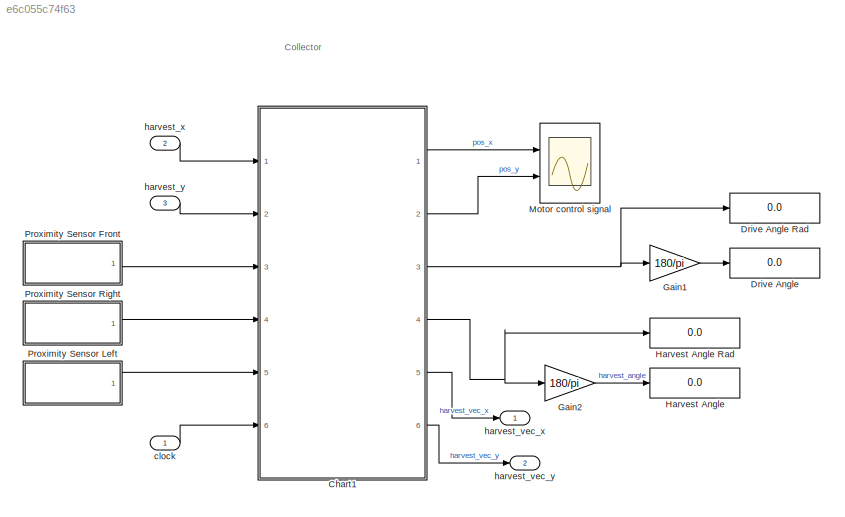
MODEL slx_e6c055c74f63
KIND model
CONFIG AbsTol = auto
CONFIG EnableMultiTasking = off
CONFIG FixedStep = 0.01
CONFIG MaxStep = auto
CONFIG MinStep = auto
CONFIG RelTol = 1e-3
CONFIG SampleTimeConstraint = Unconstrained
CONFIG Solver = FixedStepAuto
CONFIG SolverName = FixedStepAuto
CONFIG StartTime = 0.0
CONFIG StopTime = 20
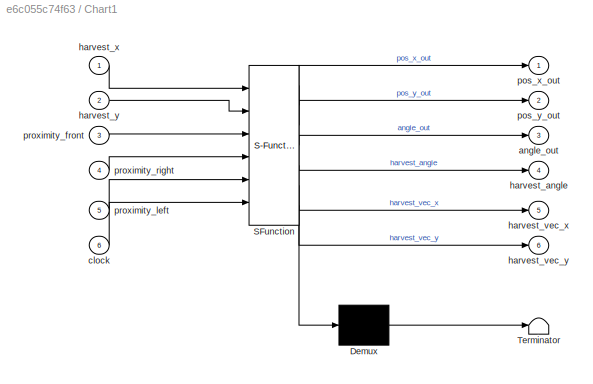
BLOCK [SubSystem] Chart1
  ErrorFcn = Stateflow.Translate.translate
  PermitHierarchicalResolution = ExplicitOnly
  Ports = [6, 6]
  RequestExecContextInheritance = off
  SFBlockType = Chart
  TreatAsAtomicUnit = on
BLOCK [Demux] Chart1/ Demux 
  Outputs = 1
  Ports = [1, 1]
BLOCK [S-Function] Chart1/ SFunction 
  EnableBusSupport = on
  FunctionName = sf_sfun
  PortCounts = [6 7]
  Ports = [6, 7]
  SFcnIsStateOwnerBlock = off
  SFunctionDeploymentMode = off
  Tag = Stateflow S-Function collector 1
BLOCK [Terminator] Chart1/ Terminator 
BLOCK [Outport] Chart1/angle_out
  IconDisplay = Port number
  Port = 3
BLOCK [Inport] Chart1/clock
  IconDisplay = Port number
  Port = 6
BLOCK [Outport] Chart1/harvest_angle
  IconDisplay = Port number
  Port = 4
BLOCK [Outport] Chart1/harvest_vec_x
  IconDisplay = Port number
  Port = 5
BLOCK [Outport] Chart1/harvest_vec_y
  IconDisplay = Port number
  Port = 6
BLOCK [Inport] Chart1/harvest_x
  IconDisplay = Port number
BLOCK [Inport] Chart1/harvest_y
  IconDisplay = Port number
  Port = 2
BLOCK [Outport] Chart1/pos_x_out
  IconDisplay = Port number
BLOCK [Outport] Chart1/pos_y_out
  IconDisplay = Port number
  Port = 2
BLOCK [Inport] Chart1/proximity_front
  IconDisplay = Port number
  Port = 3
BLOCK [Inport] Chart1/proximity_left
  IconDisplay = Port number
  Port = 5
BLOCK [Inport] Chart1/proximity_right
  IconDisplay = Port number
  Port = 4
BLOCK [Display] Drive Angle
  Decimation = 1
  Ports = [1]
BLOCK [Display] Drive Angle Rad
  Decimation = 1
  Ports = [1]
BLOCK [Gain] Gain1
  Gain = 180/pi
  OutDataTypeStr = Inherit: Inherit via internal rule
  ParamDataTypeStr = Inherit: Inherit via internal rule
  SaturateOnIntegerOverflow = off
BLOCK [Gain] Gain2
  Gain = 180/pi
  OutDataTypeStr = Inherit: Inherit via internal rule
  ParamDataTypeStr = Inherit: Inherit via internal rule
  SaturateOnIntegerOverflow = off
BLOCK [Display] Harvest Angle
  Decimation = 1
  Ports = [1]
BLOCK [Display] Harvest Angle Rad
  Decimation = 1
  Ports = [1]
BLOCK [Scope] Motor control signal
  Floating = off
  NumInputPorts = 2
  Ports = [2]
  ScopeSpecificationString = Simulink.scopes.TimeScopeBlockCfg('CurrentConfiguration', extmgr.ConfigurationSet(extmgr.Configuration('Core','General UI',true),extmgr.Configuration('Core','Source UI',true),extmgr.Configuration('Sources','WiredSimulink',true),extmgr.Configuration('Visuals','Time Domain',true,'SerializedDisplays',{struct('MinYLimReal','-4.59335','MaxYLimReal','40.40815','YLabelReal','','MinYLimMag','0.00000','Max...<+1366ch>
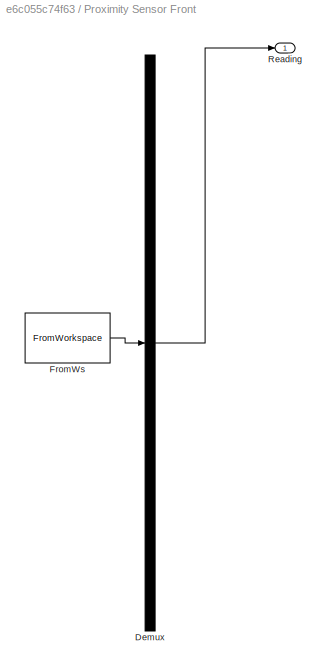
BLOCK [SubSystem] Proximity Sensor Front
  ClipboardFcn = sigbuilder_block('clipboard');
  CloseFcn = sigbuilder_block('close');
  ContinueFcn = sigbuilder_block('continue');
  CopyFcn = sigbuilder_block('copy');
  DeleteFcn = sigbuilder_block('delete');
  LoadFcn = sigbuilder_block('load');
  MaskHideContents = on
  ModelCloseFcn = sigbuilder_block('modelClose');
  NameChangeFcn = sigbuilder_block('namechange');
  OpenFcn = sigbuilder_block('open',[5.4 30 1141.2 522.6 ]);
  PauseFcn = sigbuilder_block('pause');
  Ports = [0, 1]
  PreSaveFcn = sigbuilder_block('preSave');
  RequestExecContextInheritance = off
  StartFcn = sigbuilder_block('start');
  StopFcn = sigbuilder_block('stop');
  Tag = STV Subsys
BLOCK [Demux] Proximity Sensor Front/Demux
  Outputs = 1
  Ports = [1, 1]
  Tag = STV Demux
BLOCK [FromWorkspace] Proximity Sensor Front/FromWs
  SampleTime = 0
  Tag = STV FromWs
  VariableName = tuvar
  ZeroCross = on
BLOCK [Outport] Proximity Sensor Front/Reading
  IconDisplay = Port number
  Tag = STV Outport
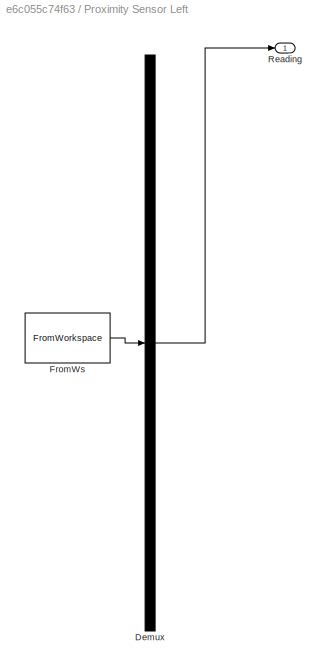
BLOCK [SubSystem] Proximity Sensor Left
  ClipboardFcn = sigbuilder_block('clipboard');
  CloseFcn = sigbuilder_block('close');
  ContinueFcn = sigbuilder_block('continue');
  CopyFcn = sigbuilder_block('copy');
  DeleteFcn = sigbuilder_block('delete');
  LoadFcn = sigbuilder_block('load');
  MaskHideContents = on
  ModelCloseFcn = sigbuilder_block('modelClose');
  NameChangeFcn = sigbuilder_block('namechange');
  OpenFcn = sigbuilder_block('open',[5.4 30 1141.2 522.6 ]);
  PauseFcn = sigbuilder_block('pause');
  Ports = [0, 1]
  PreSaveFcn = sigbuilder_block('preSave');
  RequestExecContextInheritance = off
  StartFcn = sigbuilder_block('start');
  StopFcn = sigbuilder_block('stop');
  Tag = STV Subsys
BLOCK [Demux] Proximity Sensor Left/Demux
  Outputs = 1
  Ports = [1, 1]
  Tag = STV Demux
BLOCK [FromWorkspace] Proximity Sensor Left/FromWs
  SampleTime = 0
  Tag = STV FromWs
  VariableName = tuvar
  ZeroCross = on
BLOCK [Outport] Proximity Sensor Left/Reading
  IconDisplay = Port number
  Tag = STV Outport
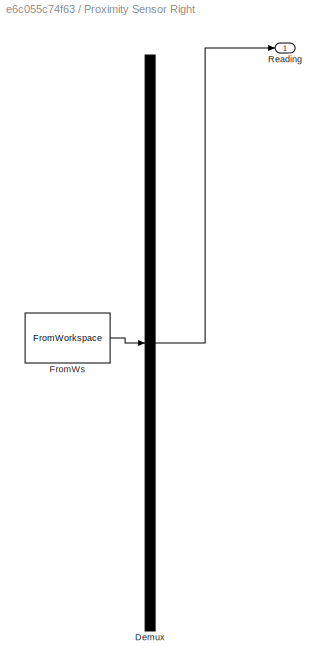
BLOCK [SubSystem] Proximity Sensor Right
  ClipboardFcn = sigbuilder_block('clipboard');
  CloseFcn = sigbuilder_block('close');
  ContinueFcn = sigbuilder_block('continue');
  CopyFcn = sigbuilder_block('copy');
  DeleteFcn = sigbuilder_block('delete');
  LoadFcn = sigbuilder_block('load');
  MaskHideContents = on
  ModelCloseFcn = sigbuilder_block('modelClose');
  NameChangeFcn = sigbuilder_block('namechange');
  OpenFcn = sigbuilder_block('open',[5.4 30 1141.2 522.6 ]);
  PauseFcn = sigbuilder_block('pause');
  Ports = [0, 1]
  PreSaveFcn = sigbuilder_block('preSave');
  RequestExecContextInheritance = off
  StartFcn = sigbuilder_block('start');
  StopFcn = sigbuilder_block('stop');
  Tag = STV Subsys
BLOCK [Demux] Proximity Sensor Right/Demux
  Outputs = 1
  Ports = [1, 1]
  Tag = STV Demux
BLOCK [FromWorkspace] Proximity Sensor Right/FromWs
  SampleTime = 0
  Tag = STV FromWs
  VariableName = tuvar
  ZeroCross = on
BLOCK [Outport] Proximity Sensor Right/Reading
  IconDisplay = Port number
  Tag = STV Outport
BLOCK [Inport] clock
  IconDisplay = Port number
  OutDataTypeStr = double
  PortDimensions = 1
  SampleTime = 0
  SamplingMode = Sample based
  SignalType = real
BLOCK [Outport] harvest_vec_x
  IconDisplay = Port number
  OutDataTypeStr = double
  PortDimensions = 1
  SampleTime = 0
  SamplingMode = Sample based
  SignalType = real
BLOCK [Outport] harvest_vec_y
  IconDisplay = Port number
  OutDataTypeStr = double
  Port = 2
  PortDimensions = 1
  SampleTime = 0
  SamplingMode = Sample based
  SignalType = real
BLOCK [Inport] harvest_x
  IconDisplay = Port number
  OutDataTypeStr = double
  Port = 2
  PortDimensions = 1
  SampleTime = 0
  SamplingMode = Sample based
  SignalType = real
BLOCK [Inport] harvest_y
  IconDisplay = Port number
  OutDataTypeStr = double
  Port = 3
  PortDimensions = 1
  SampleTime = 0
  SamplingMode = Sample based
  SignalType = real
ANNOTATION (root): Collector
LINE Chart1:1 -> Motor control signal:1
LINE Chart1:2 -> Motor control signal:2
NET Chart1:3 -> Drive Angle Rad:1, Gain1:1
NET Chart1:4 -> Gain2:1, Harvest Angle Rad:1
LINE Chart1:5 -> harvest_vec_x:1
LINE Chart1:6 -> harvest_vec_y:1
LINE Gain1:1 -> Drive Angle:1
LINE Gain2:1 -> Harvest Angle:1
LINE Proximity Sensor Front:1 -> Chart1:3
LINE Proximity Sensor Left:1 -> Chart1:5
LINE Proximity Sensor Right:1 -> Chart1:4
LINE clock:1 -> Chart1:6
LINE harvest_x:1 -> Chart1:1
LINE harvest_y:1 -> Chart1:2
note: NET lines group one-source signal fan-out (src -> all destinations, sorted); 1:1 wires keep LINE
CHART Chart1 states=7 transitions=11
  STATE_LABEL 'Annoy'
  STATE_LABEL 'Move\ndu:\npos_x_dot = (r / 2) * (ul + ur) * cos(angle);\npos_y_dot = (r / 2) * (ul + ur) * sin(angle);\nangle_dot = (r / L) * (ur - ul);\npos_x_out = pos_x;\npos_y_out = pos_y;\nangle_out = angle;\n'
  STATE_LABEL 'Tries to annoy other robots by pushing them using proximity sensor readings'
  STATE_LABEL '[proximity_right < proximity_front && turn == 0]\n{ul = 1; ur = -1; turn = 2;}'
  STATE_LABEL '[proximity_left < proximity_front && turn == 0]\n{ul = -1; ur = 1; turn = 1;}'
  STATE_LABEL '[(proximity_front < proximity_right && proximity_front < proximity_left) && turn > 0]{ul = 1; ur = 1; turn = 0}'
  STATE_LABEL 'Move\ndu:\npos_x_dot = (r / 2) * (ul + ur) * cos(angle);\npos_y_dot = (r / 2) * (ul + ur) * sin(angle);\nangle_dot = (r / L) * (ur - ul);\npos_x_out = pos_x;\npos_y_out = pos_y;\nangle_out = angle;\n'
  STATE_LABEL 'Tries to annoy other robots by pushing them using proximity sensor readings'
  STATE_LABEL 'Harvest'
  STATE_LABEL 'Move\nen:\nharvest_vec_x = (harvest_x - pos_x);\nharvest_vec_y = (harvest_y - pos_y);\nharvest_angle = atan(harvest_vec_y / harvest_vec_x)\ndu:\npos_x_dot = (r / 2) * (ul + ur) * cos(angle);\npos_y_dot = (r / 2) * (ul + ur) * sin(angle);\nangle_dot = (r / L) * (ur - ul);\npos_x_out = pos_x;\npos_y_out = pos_y;\nangle_out = angle;\n'
  STATE_LABEL 'Stop'
  STATE_LABEL 'Drives to the given location of light'
  STATE_LABEL '[(angle - harvest_angle > 0.005) && turn == 0]\n{ul = 1; ur = -1; turn = 2;}'
  STATE_LABEL '[abs(harvest_x - pos_x) <= 0.1 && abs(harvest_y - pos_y) <= 0.1]'
  STATE_LABEL '[(angle - harvest_angle < -0.005) && turn == 0]\n{ul = -1; ur = 1; turn = 1;}'
  STATE_LABEL '[(angle > harvest_angle && turn == 1) || (angle < harvest_angle && turn == 2)]\n{ul = 1; ur = 1; turn = 0}'
  STATE_LABEL 'Move\nen:\nharvest_vec_x = (harvest_x - pos_x);\nharvest_vec_y = (harvest_y - pos_y);\nharvest_angle = atan(harvest_vec_y / harvest_vec_x)\ndu:\npos_x_dot = (r / 2) * (ul + ur) * cos(angle);\npos_y_dot = (r / 2) * (ul + ur) * sin(angle);\nangle_dot = (r / L) * (ur - ul);\npos_x_out = pos_x;\npos_y_out = pos_y;\nangle_out = angle;\n'
  STATE_LABEL 'Stop'
  STATE_LABEL 'Drives to the given location of light'
